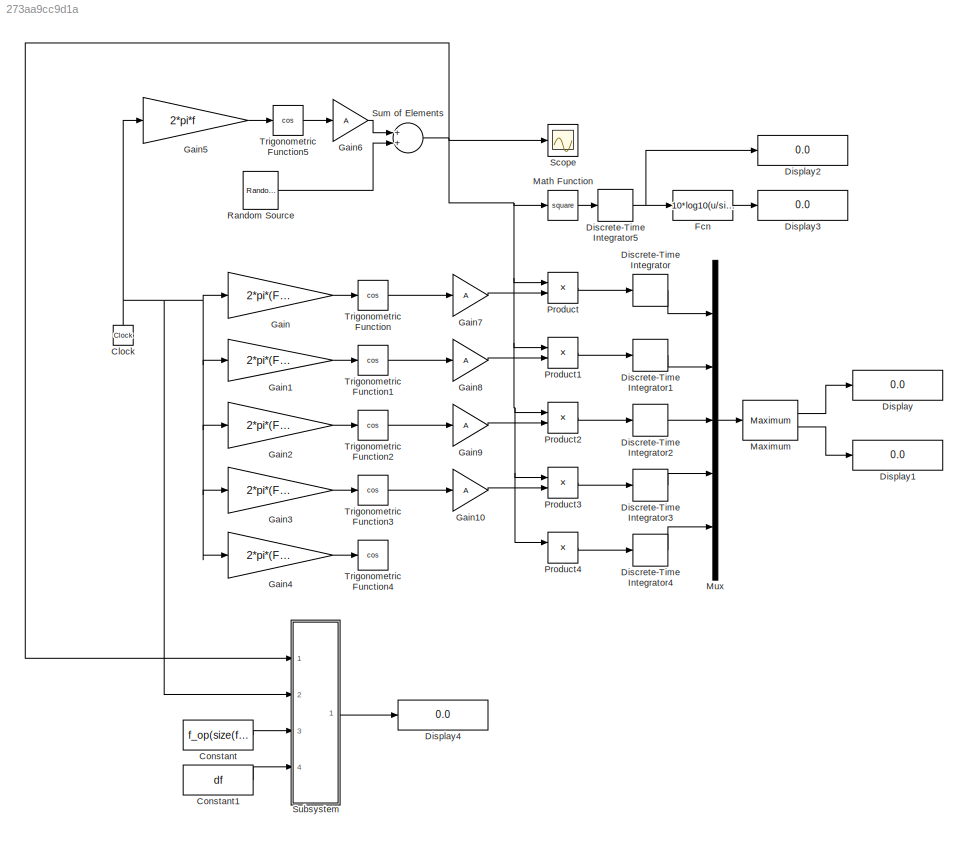
MODEL slx_273aa9cc9d1a
KIND model
CONFIG AbsTol = auto
CONFIG FixedStep = auto
CONFIG MaxStep = auto
CONFIG MinStep = auto
CONFIG RelTol = 1e-3
CONFIG SampleTimeConstraint = Unconstrained
CONFIG Solver = VariableStepAuto
CONFIG SolverMode = Auto
CONFIG SolverName = VariableStepAuto
CONFIG StartTime = 0.0
CONFIG StopTime = 0.1
BLOCK [Clock] Clock
BLOCK [Constant] Constant
  Value = f_op(size(f_op,3))
BLOCK [Constant] Constant1
  Value = df
BLOCK [DiscreteIntegrator] Discrete-Time Integrator
  ICPrevOutput = DiscIntNeverNeededParam
  ICPrevScaledInput = DiscIntNeverNeededParam
  InitialConditionSetting = State (most efficient)
  IntegratorMethod = Accumulation: Forward Euler
  Ports = [1, 1]
  SampleTime = dt
BLOCK [DiscreteIntegrator] Discrete-Time Integrator1
  ICPrevOutput = DiscIntNeverNeededParam
  ICPrevScaledInput = DiscIntNeverNeededParam
  InitialConditionSetting = State (most efficient)
  IntegratorMethod = Accumulation: Forward Euler
  Ports = [1, 1]
  SampleTime = dt
BLOCK [DiscreteIntegrator] Discrete-Time Integrator2
  ICPrevOutput = DiscIntNeverNeededParam
  ICPrevScaledInput = DiscIntNeverNeededParam
  InitialConditionSetting = State (most efficient)
  IntegratorMethod = Accumulation: Forward Euler
  Ports = [1, 1]
  SampleTime = dt
BLOCK [DiscreteIntegrator] Discrete-Time Integrator3
  ICPrevOutput = DiscIntNeverNeededParam
  ICPrevScaledInput = DiscIntNeverNeededParam
  InitialConditionSetting = State (most efficient)
  IntegratorMethod = Accumulation: Forward Euler
  Ports = [1, 1]
  SampleTime = dt
BLOCK [DiscreteIntegrator] Discrete-Time Integrator4
  ICPrevOutput = DiscIntNeverNeededParam
  ICPrevScaledInput = DiscIntNeverNeededParam
  InitialConditionSetting = State (most efficient)
  IntegratorMethod = Accumulation: Forward Euler
  Ports = [1, 1]
  SampleTime = dt
BLOCK [DiscreteIntegrator] Discrete-Time Integrator5
  ICPrevOutput = DiscIntNeverNeededParam
  ICPrevScaledInput = DiscIntNeverNeededParam
  InitialConditionSetting = State (most efficient)
  IntegratorMethod = Accumulation: Forward Euler
  Ports = [1, 1]
  SampleTime = dt
BLOCK [Display] Display
  Decimation = 1
  Ports = [1]
BLOCK [Display] Display1
  Decimation = 1
  Ports = [1]
BLOCK [Display] Display2
  Decimation = 1
  Ports = [1]
BLOCK [Display] Display3
  Decimation = 1
  Ports = [1]
BLOCK [Display] Display4
  Decimation = 1
  Format = long
  Ports = [1]
BLOCK [Fcn] Fcn
  Expr = 10*log10(u/sigma)
BLOCK [Gain] Gain
  Gain = 2*pi*(Fo-2*dFo)
  OutDataTypeStr = Inherit: Inherit via internal rule
  ParamDataTypeStr = Inherit: Inherit via internal rule
  SaturateOnIntegerOverflow = off
BLOCK [Gain] Gain1
  Gain = 2*pi*(Fo-1*dFo)
  OutDataTypeStr = Inherit: Inherit via internal rule
  ParamDataTypeStr = Inherit: Inherit via internal rule
  SaturateOnIntegerOverflow = off
BLOCK [Gain] Gain10
  Gain = A
  OutDataTypeStr = Inherit: Inherit via internal rule
  ParamDataTypeStr = Inherit: Inherit via internal rule
  SaturateOnIntegerOverflow = off
BLOCK [Gain] Gain2
  Gain = 2*pi*(Fo-0*dFo)
  OutDataTypeStr = Inherit: Inherit via internal rule
  ParamDataTypeStr = Inherit: Inherit via internal rule
  SaturateOnIntegerOverflow = off
BLOCK [Gain] Gain3
  Gain = 2*pi*(Fo+1*dFo)
  OutDataTypeStr = Inherit: Inherit via internal rule
  ParamDataTypeStr = Inherit: Inherit via internal rule
  SaturateOnIntegerOverflow = off
BLOCK [Gain] Gain4
  Gain = 2*pi*(Fo+2*dFo)
  OutDataTypeStr = Inherit: Inherit via internal rule
  ParamDataTypeStr = Inherit: Inherit via internal rule
  SaturateOnIntegerOverflow = off
BLOCK [Gain] Gain5
  Gain = 2*pi*f
  OutDataTypeStr = Inherit: Inherit via internal rule
  ParamDataTypeStr = Inherit: Inherit via internal rule
  SaturateOnIntegerOverflow = off
BLOCK [Gain] Gain6
  Gain = A
  OutDataTypeStr = Inherit: Inherit via internal rule
  ParamDataTypeStr = Inherit: Inherit via internal rule
  SaturateOnIntegerOverflow = off
BLOCK [Gain] Gain7
  Gain = A
  OutDataTypeStr = Inherit: Inherit via internal rule
  ParamDataTypeStr = Inherit: Inherit via internal rule
  SaturateOnIntegerOverflow = off
BLOCK [Gain] Gain8
  Gain = A
  OutDataTypeStr = Inherit: Inherit via internal rule
  ParamDataTypeStr = Inherit: Inherit via internal rule
  SaturateOnIntegerOverflow = off
BLOCK [Gain] Gain9
  Gain = A
  OutDataTypeStr = Inherit: Inherit via internal rule
  ParamDataTypeStr = Inherit: Inherit via internal rule
  SaturateOnIntegerOverflow = off
BLOCK [Math] Math Function
  Operator = square
  Ports = [1, 1]
BLOCK [Reference] Maximum  REF=dspstat3/Maximum
  Ports = [1, 2]
  SourceBlock = dspstat3/Maximum
  SourceType = Maximum
  UserDataPersistent = on
BLOCK [Mux] Mux
  DisplayOption = bar
  Inputs = 5
  Ports = [5, 1]
BLOCK [Product] Product
  InputSameDT = off
  OutDataTypeStr = Inherit: Inherit via internal rule
  Ports = [2, 1]
  RndMeth = Floor
  SaturateOnIntegerOverflow = off
BLOCK [Product] Product1
  InputSameDT = off
  OutDataTypeStr = Inherit: Inherit via internal rule
  Ports = [2, 1]
  RndMeth = Floor
  SaturateOnIntegerOverflow = off
BLOCK [Product] Product2
  InputSameDT = off
  OutDataTypeStr = Inherit: Inherit via internal rule
  Ports = [2, 1]
  RndMeth = Floor
  SaturateOnIntegerOverflow = off
BLOCK [Product] Product3
  InputSameDT = off
  OutDataTypeStr = Inherit: Inherit via internal rule
  Ports = [2, 1]
  RndMeth = Floor
  SaturateOnIntegerOverflow = off
BLOCK [Product] Product4
  InputSameDT = off
  OutDataTypeStr = Inherit: Inherit via internal rule
  Ports = [2, 1]
  RndMeth = Floor
  SaturateOnIntegerOverflow = off
BLOCK [Reference] Random Source  REF=dspsrcs4/Random
Source
  Ports = [0, 1]
  SourceBlock = dspsrcs4/Random\nSource
  SourceType = Random Source
  UserDataPersistent = on
BLOCK [Scope] Scope
  Ports = [1]
  ScopeSpecificationString = Simulink.scopes.TimeScopeBlockCfg('CurrentConfiguration', extmgr.ConfigurationSet(extmgr.Configuration('Core','General UI',true),extmgr.Configuration('Core','Source UI',true),extmgr.Configuration('Sources','WiredSimulink',true),extmgr.Configuration('Visuals','Time Domain',true,'SerializedDisplays',{struct('MinYLimReal','-0.01482','MaxYLimReal','0.01338','YLabelReal','','MinYLimMag','0.00000','MaxY...<+1375ch>
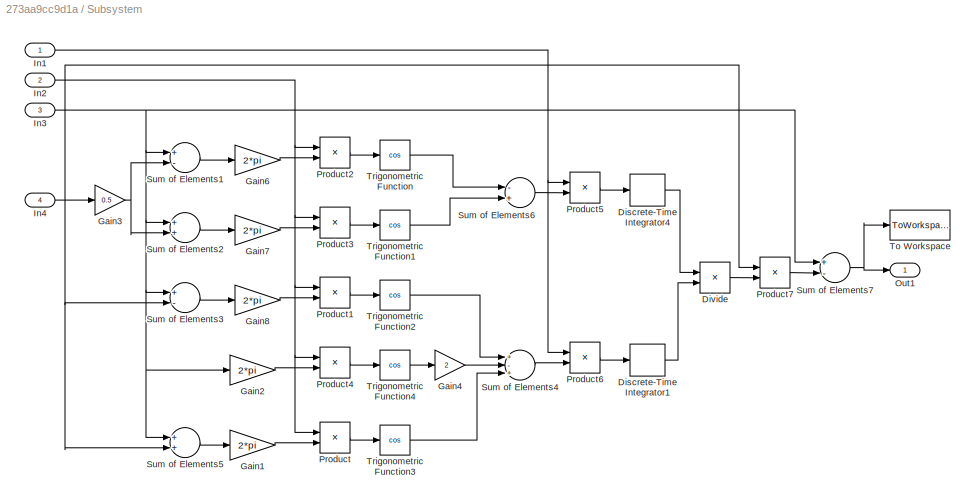
BLOCK [SubSystem] Subsystem
  Ports = [4, 1]
  RequestExecContextInheritance = off
  Variant = off
BLOCK [DiscreteIntegrator] Subsystem/Discrete-Time Integrator1
  ICPrevOutput = DiscIntNeverNeededParam
  ICPrevScaledInput = DiscIntNeverNeededParam
  InitialConditionSetting = State (most efficient)
  IntegratorMethod = Accumulation: Forward Euler
  Ports = [1, 1]
  SampleTime = dt
BLOCK [DiscreteIntegrator] Subsystem/Discrete-Time Integrator4
  ICPrevOutput = DiscIntNeverNeededParam
  ICPrevScaledInput = DiscIntNeverNeededParam
  InitialConditionSetting = State (most efficient)
  IntegratorMethod = Accumulation: Forward Euler
  Ports = [1, 1]
  SampleTime = dt
BLOCK [Product] Subsystem/Divide
  InputSameDT = off
  Inputs = */
  OutDataTypeStr = Inherit: Inherit via internal rule
  Ports = [2, 1]
  RndMeth = Floor
  SaturateOnIntegerOverflow = off
BLOCK [Gain] Subsystem/Gain1
  Gain = 2*pi
  OutDataTypeStr = Inherit: Inherit via internal rule
  ParamDataTypeStr = Inherit: Inherit via internal rule
  SaturateOnIntegerOverflow = off
BLOCK [Gain] Subsystem/Gain2
  Gain = 2*pi
  OutDataTypeStr = Inherit: Inherit via internal rule
  ParamDataTypeStr = Inherit: Inherit via internal rule
  SaturateOnIntegerOverflow = off
BLOCK [Gain] Subsystem/Gain3
  Gain = 0.5
  OutDataTypeStr = Inherit: Inherit via internal rule
  ParamDataTypeStr = Inherit: Inherit via internal rule
  SaturateOnIntegerOverflow = off
BLOCK [Gain] Subsystem/Gain4
  Gain = 2
  OutDataTypeStr = Inherit: Inherit via internal rule
  ParamDataTypeStr = Inherit: Inherit via internal rule
  SaturateOnIntegerOverflow = off
BLOCK [Gain] Subsystem/Gain6
  Gain = 2*pi
  OutDataTypeStr = Inherit: Inherit via internal rule
  ParamDataTypeStr = Inherit: Inherit via internal rule
  SaturateOnIntegerOverflow = off
BLOCK [Gain] Subsystem/Gain7
  Gain = 2*pi
  OutDataTypeStr = Inherit: Inherit via internal rule
  ParamDataTypeStr = Inherit: Inherit via internal rule
  SaturateOnIntegerOverflow = off
BLOCK [Gain] Subsystem/Gain8
  Gain = 2*pi
  OutDataTypeStr = Inherit: Inherit via internal rule
  ParamDataTypeStr = Inherit: Inherit via internal rule
  SaturateOnIntegerOverflow = off
BLOCK [Inport] Subsystem/In1
  IconDisplay = Port number
BLOCK [Inport] Subsystem/In2
  IconDisplay = Port number
  Port = 2
BLOCK [Inport] Subsystem/In3
  IconDisplay = Port number
  Port = 3
BLOCK [Inport] Subsystem/In4
  IconDisplay = Port number
  Port = 4
BLOCK [Outport] Subsystem/Out1
  IconDisplay = Port number
BLOCK [Product] Subsystem/Product
  InputSameDT = off
  OutDataTypeStr = Inherit: Inherit via internal rule
  Ports = [2, 1]
  RndMeth = Floor
  SaturateOnIntegerOverflow = off
BLOCK [Product] Subsystem/Product1
  InputSameDT = off
  OutDataTypeStr = Inherit: Inherit via internal rule
  Ports = [2, 1]
  RndMeth = Floor
  SaturateOnIntegerOverflow = off
BLOCK [Product] Subsystem/Product2
  InputSameDT = off
  OutDataTypeStr = Inherit: Inherit via internal rule
  Ports = [2, 1]
  RndMeth = Floor
  SaturateOnIntegerOverflow = off
BLOCK [Product] Subsystem/Product3
  InputSameDT = off
  OutDataTypeStr = Inherit: Inherit via internal rule
  Ports = [2, 1]
  RndMeth = Floor
  SaturateOnIntegerOverflow = off
BLOCK [Product] Subsystem/Product4
  InputSameDT = off
  OutDataTypeStr = Inherit: Inherit via internal rule
  Ports = [2, 1]
  RndMeth = Floor
  SaturateOnIntegerOverflow = off
BLOCK [Product] Subsystem/Product5
  InputSameDT = off
  OutDataTypeStr = Inherit: Inherit via internal rule
  Ports = [2, 1]
  RndMeth = Floor
  SaturateOnIntegerOverflow = off
BLOCK [Product] Subsystem/Product6
  InputSameDT = off
  OutDataTypeStr = Inherit: Inherit via internal rule
  Ports = [2, 1]
  RndMeth = Floor
  SaturateOnIntegerOverflow = off
BLOCK [Product] Subsystem/Product7
  InputSameDT = off
  OutDataTypeStr = Inherit: Inherit via internal rule
  Ports = [2, 1]
  RndMeth = Floor
  SaturateOnIntegerOverflow = off
BLOCK [Sum] Subsystem/Sum of Elements1
  InputSameDT = off
  Inputs = +-
  OutDataTypeStr = Inherit: Inherit via internal rule
  Ports = [2, 1]
  SaturateOnIntegerOverflow = off
BLOCK [Sum] Subsystem/Sum of Elements2
  InputSameDT = off
  OutDataTypeStr = Inherit: Inherit via internal rule
  Ports = [2, 1]
  SaturateOnIntegerOverflow = off
BLOCK [Sum] Subsystem/Sum of Elements3
  InputSameDT = off
  Inputs = +-
  OutDataTypeStr = Inherit: Inherit via internal rule
  Ports = [2, 1]
  SaturateOnIntegerOverflow = off
BLOCK [Sum] Subsystem/Sum of Elements4
  InputSameDT = off
  Inputs = +-+
  OutDataTypeStr = Inherit: Inherit via internal rule
  Ports = [3, 1]
  SaturateOnIntegerOverflow = off
BLOCK [Sum] Subsystem/Sum of Elements5
  InputSameDT = off
  OutDataTypeStr = Inherit: Inherit via internal rule
  Ports = [2, 1]
  SaturateOnIntegerOverflow = off
BLOCK [Sum] Subsystem/Sum of Elements6
  InputSameDT = off
  Inputs = -+
  OutDataTypeStr = Inherit: Inherit via internal rule
  Ports = [2, 1]
  SaturateOnIntegerOverflow = off
BLOCK [Sum] Subsystem/Sum of Elements7
  InputSameDT = off
  Inputs = +-
  OutDataTypeStr = Inherit: Inherit via internal rule
  Ports = [2, 1]
  SaturateOnIntegerOverflow = off
BLOCK [ToWorkspace] Subsystem/To Workspace
  FixptAsFi = on
  MaxDataPoints = inf
  Ports = [1]
  SampleTime = dt
  Save2DSignal = 3-D array (concatenate along third dimension)
  VariableName = f_op
BLOCK [Trigonometry] Subsystem/Trigonometric Function
  Operator = cos
  Ports = [1, 1]
BLOCK [Trigonometry] Subsystem/Trigonometric Function1
  Operator = cos
  Ports = [1, 1]
BLOCK [Trigonometry] Subsystem/Trigonometric Function2
  Operator = cos
  Ports = [1, 1]
BLOCK [Trigonometry] Subsystem/Trigonometric Function3
  Operator = cos
  Ports = [1, 1]
BLOCK [Trigonometry] Subsystem/Trigonometric Function4
  Operator = cos
  Ports = [1, 1]
BLOCK [Sum] Sum of Elements
  InputSameDT = off
  OutDataTypeStr = Inherit: Inherit via internal rule
  Ports = [2, 1]
  SaturateOnIntegerOverflow = off
BLOCK [Trigonometry] Trigonometric Function
  Operator = cos
  Ports = [1, 1]
BLOCK [Trigonometry] Trigonometric Function1
  Operator = cos
  Ports = [1, 1]
BLOCK [Trigonometry] Trigonometric Function2
  Operator = cos
  Ports = [1, 1]
BLOCK [Trigonometry] Trigonometric Function3
  Operator = cos
  Ports = [1, 1]
BLOCK [Trigonometry] Trigonometric Function4
  Operator = cos
  Ports = [1, 1]
BLOCK [Trigonometry] Trigonometric Function5
  Operator = cos
  Ports = [1, 1]
NET Clock:1 -> Gain1:1, Gain2:1, Gain3:1, Gain4:1, Gain5:1, Gain:1, Subsystem:2
LINE Constant1:1 -> Subsystem:4
LINE Constant:1 -> Subsystem:3
LINE Discrete-Time Integrator1:1 -> Mux:2
LINE Discrete-Time Integrator2:1 -> Mux:3
LINE Discrete-Time Integrator3:1 -> Mux:4
LINE Discrete-Time Integrator4:1 -> Mux:5
NET Discrete-Time Integrator5:1 -> Display2:1, Fcn:1
LINE Discrete-Time Integrator:1 -> Mux:1
LINE Fcn:1 -> Display3:1
LINE Gain10:1 -> Product3:2
LINE Gain1:1 -> Trigonometric Function1:1
LINE Gain2:1 -> Trigonometric Function2:1
LINE Gain3:1 -> Trigonometric Function3:1
LINE Gain4:1 -> Trigonometric Function4:1
LINE Gain5:1 -> Trigonometric Function5:1
LINE Gain6:1 -> Sum of Elements:1
LINE Gain7:1 -> Product:2
LINE Gain8:1 -> Product1:2
LINE Gain9:1 -> Product2:2
LINE Gain:1 -> Trigonometric Function:1
LINE Math Function:1 -> Discrete-Time Integrator5:1
LINE Maximum:1 -> Display:1
LINE Maximum:2 -> Display1:1
LINE Mux:1 -> Maximum:1
LINE Product1:1 -> Discrete-Time Integrator1:1
LINE Product2:1 -> Discrete-Time Integrator2:1
LINE Product3:1 -> Discrete-Time Integrator3:1
LINE Product4:1 -> Discrete-Time Integrator4:1
LINE Product:1 -> Discrete-Time Integrator:1
LINE Random Source:1 -> Sum of Elements:2
LINE Subsystem/Discrete-Time Integrator1:1 -> Subsystem/Divide:2
LINE Subsystem/Discrete-Time Integrator4:1 -> Subsystem/Divide:1
LINE Subsystem/Divide:1 -> Subsystem/Product7:2
LINE Subsystem/Gain1:1 -> Subsystem/Product:2
LINE Subsystem/Gain2:1 -> Subsystem/Product4:2
NET Subsystem/Gain3:1 -> Subsystem/Sum of Elements1:2, Subsystem/Sum of Elements2:2
LINE Subsystem/Gain4:1 -> Subsystem/Sum of Elements4:2
LINE Subsystem/Gain6:1 -> Subsystem/Product2:2
LINE Subsystem/Gain7:1 -> Subsystem/Product3:2
LINE Subsystem/Gain8:1 -> Subsystem/Product1:2
NET Subsystem/In1:1 -> Subsystem/Product5:1, Subsystem/Product6:1
NET Subsystem/In2:1 -> Subsystem/Product1:1, Subsystem/Product2:1, Subsystem/Product3:1, Subsystem/Product4:1, Subsystem/Product:1
NET Subsystem/In3:1 -> Subsystem/Gain2:1, Subsystem/Sum of Elements1:1, Subsystem/Sum of Elements2:1, Subsystem/Sum of Elements3:1, Subsystem/Sum of Elements5:1, Subsystem/Sum of Elements7:1
NET Subsystem/In4:1 -> Subsystem/Gain3:1, Subsystem/Product7:1, Subsystem/Sum of Elements3:2, Subsystem/Sum of Elements5:2
LINE Subsystem/Product1:1 -> Subsystem/Trigonometric Function2:1
LINE Subsystem/Product2:1 -> Subsystem/Trigonometric Function:1
LINE Subsystem/Product3:1 -> Subsystem/Trigonometric Function1:1
LINE Subsystem/Product4:1 -> Subsystem/Trigonometric Function4:1
LINE Subsystem/Product5:1 -> Subsystem/Discrete-Time Integrator4:1
LINE Subsystem/Product6:1 -> Subsystem/Discrete-Time Integrator1:1
LINE Subsystem/Product7:1 -> Subsystem/Sum of Elements7:2
LINE Subsystem/Product:1 -> Subsystem/Trigonometric Function3:1
LINE Subsystem/Sum of Elements1:1 -> Subsystem/Gain6:1
LINE Subsystem/Sum of Elements2:1 -> Subsystem/Gain7:1
LINE Subsystem/Sum of Elements3:1 -> Subsystem/Gain8:1
LINE Subsystem/Sum of Elements4:1 -> Subsystem/Product6:2
LINE Subsystem/Sum of Elements5:1 -> Subsystem/Gain1:1
LINE Subsystem/Sum of Elements6:1 -> Subsystem/Product5:2
NET Subsystem/Sum of Elements7:1 -> Subsystem/Out1:1, Subsystem/To Workspace:1
LINE Subsystem/Trigonometric Function1:1 -> Subsystem/Sum of Elements6:2
LINE Subsystem/Trigonometric Function2:1 -> Subsystem/Sum of Elements4:1
LINE Subsystem/Trigonometric Function3:1 -> Subsystem/Sum of Elements4:3
LINE Subsystem/Trigonometric Function4:1 -> Subsystem/Gain4:1
LINE Subsystem/Trigonometric Function:1 -> Subsystem/Sum of Elements6:1
LINE Subsystem:1 -> Display4:1
NET Sum of Elements:1 -> Math Function:1, Product1:1, Product2:1, Product3:1, Product4:1, Product:1, Scope:1, Subsystem:1
LINE Trigonometric Function1:1 -> Gain8:1
LINE Trigonometric Function2:1 -> Gain9:1
LINE Trigonometric Function3:1 -> Gain10:1
LINE Trigonometric Function5:1 -> Gain6:1
LINE Trigonometric Function:1 -> Gain7:1
note: NET lines group one-source signal fan-out (src -> all destinations, sorted); 1:1 wires keep LINE
